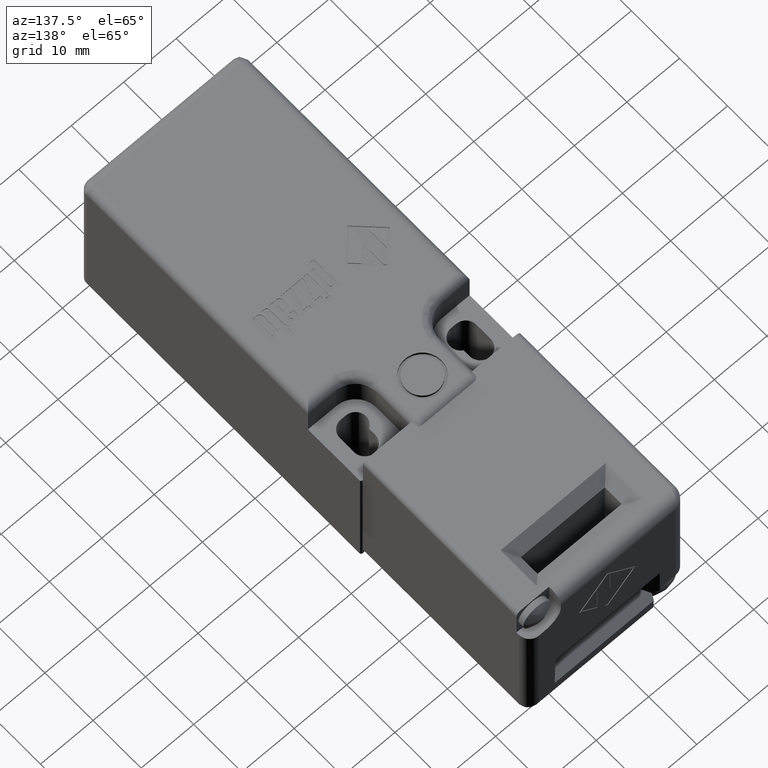
[diagram: clean part render]
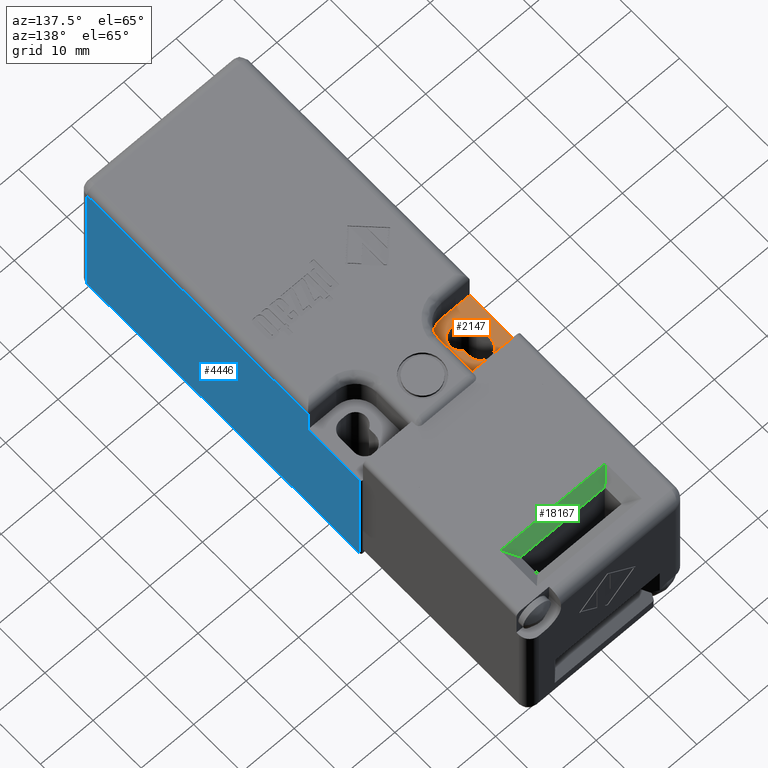
[diagram: same view with three faces highlighted in distinct colors, each labeled with its STEP entity id]
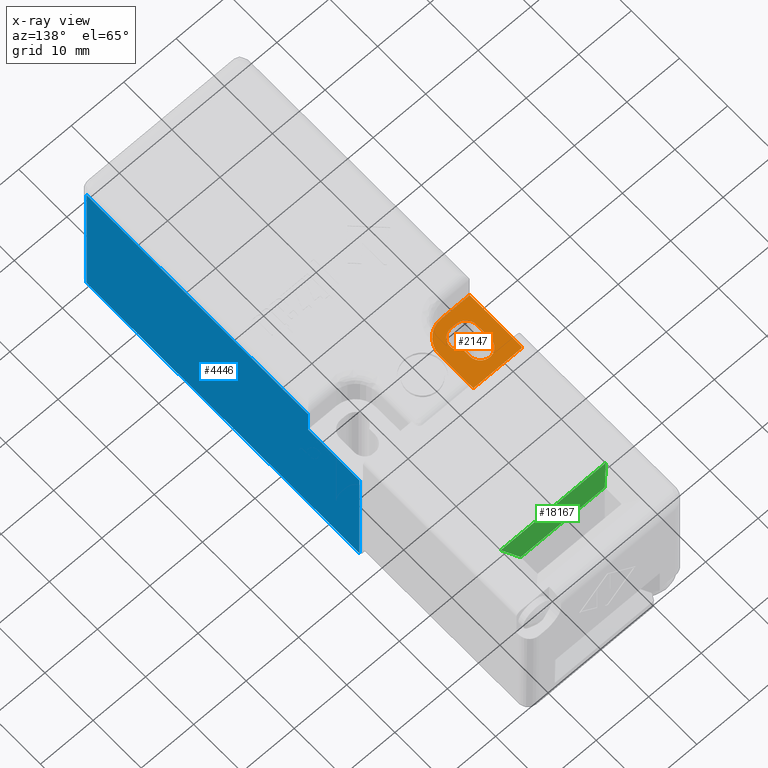
[diagram: x-ray of the same camera — body ghosted, the three highlighted faces saturated]
A machine part, auxiliary view with three faces highlighted in distinct colors.
The next image is the same camera in x-ray (body ghosted, the three faces saturated) — at least one of them is partly hidden behind the body in this view.
Their STEP definitions:

[orange] entity #2147 — the highlighted planar face has unit normal (0, 0, 1).
#2003=CARTESIAN_POINT('',(-6.000000000000004,6.999999999999997,12.000000000000004));
#2004=VERTEX_POINT('',#2003);
#2013=CARTESIAN_POINT('',(-6.000000000000004,3.469447E-015,12.000000000000004));
#2014=VERTEX_POINT('',#2013);
#2015=CARTESIAN_POINT('',(-6.000000000000004,3.469447E-015,12.000000000000004));
#2016=DIRECTION('',(0.0,1.0,0.0));
#2017=VECTOR('',#2016,6.999999999999993);
#2018=LINE('',#2015,#2017);
#2019=EDGE_CURVE('',#2014,#2004,#2018,.T.);
#2038=CARTESIAN_POINT('',(-15.870000000000008,-4.550000000000003,12.000000000000004));
#2039=DIRECTION('',(0.0,0.0,1.0));
#2040=DIRECTION('',(1.0,0.0,0.0));
#2041=AXIS2_PLACEMENT_3D('',#2038,#2039,#2040);
#2042=PLANE('',#2041);
#2043=ORIENTED_EDGE('',*,*,#2019,.T.);
#2044=CARTESIAN_POINT('',(-15.0,6.999999999999997,12.000000000000004));
#2045=VERTEX_POINT('',#2044);
#2046=CARTESIAN_POINT('',(-6.000000000000005,6.999999999999991,12.000000000000004));
#2047=DIRECTION('',(-1.0,0.0,0.0));
#2048=VECTOR('',#2047,8.999999999999995);
#2049=LINE('',#2046,#2048);
#2050=EDGE_CURVE('',#2004,#2045,#2049,.T.);
#2051=ORIENTED_EDGE('',*,*,#2050,.T.);
#2052=CARTESIAN_POINT('',(-15.100000000000000,6.999999999999991,12.000000000000004));
#2053=VERTEX_POINT('',#2052);
#2054=CARTESIAN_POINT('',(-15.0,6.999999999999991,12.000000000000004));
#2055=DIRECTION('',(-1.0,0.0,0.0));
#2056=VECTOR('',#2055,0.100000000000000);
#2057=LINE('',#2054,#2056);
#2058=EDGE_CURVE('',#2045,#2053,#2057,.T.);
#2059=ORIENTED_EDGE('',*,*,#2058,.T.);
#2060=CARTESIAN_POINT('',(-15.400000000000006,6.699999999999990,12.000000000000004));
#2061=VERTEX_POINT('',#2060);
#2062=CARTESIAN_POINT('',(-15.100000000000005,6.699999999999990,12.000000000000004));
#2063=DIRECTION('',(0.0,0.0,1.0));
#2064=DIRECTION('',(1.0,0.0,0.0));
#2065=AXIS2_PLACEMENT_3D('',#2062,#2063,#2064);
#2066=CIRCLE('',#2065,0.300000000000000);
#2067=EDGE_CURVE('',#2053,#2061,#2066,.T.);
#2068=ORIENTED_EDGE('',*,*,#2067,.T.);
#2069=CARTESIAN_POINT('',(-15.400000000000000,-4.0,12.000000000000004));
#2070=VERTEX_POINT('',#2069);
#2071=CARTESIAN_POINT('',(-15.400000000000006,6.699999999999990,12.000000000000004));
#2072=DIRECTION('',(0.0,-1.0,0.0));
#2073=VECTOR('',#2072,10.699999999999990);
#2074=LINE('',#2071,#2073);
#2075=EDGE_CURVE('',#2061,#2070,#2074,.T.);
#2076=ORIENTED_EDGE('',*,*,#2075,.T.);
#2077=CARTESIAN_POINT('',(-10.000000000000007,-4.0,12.000000000000004));
#2078=VERTEX_POINT('',#2077);
#2079=CARTESIAN_POINT('',(-15.400000000000000,-4.0,12.000000000000004));
#2080=DIRECTION('',(1.0,0.0,0.0));
#2081=VECTOR('',#2080,5.399999999999993);
#2082=LINE('',#2079,#2081);
#2083=EDGE_CURVE('',#2070,#2078,#2082,.T.);
#2084=ORIENTED_EDGE('',*,*,#2083,.T.);
#2085=CARTESIAN_POINT('',(-10.000000000000007,3.469447E-015,12.000000000000004));
#2086=DIRECTION('',(0.0,0.0,1.0));
#2087=DIRECTION('',(1.0,0.0,0.0));
#2088=AXIS2_PLACEMENT_3D('',#2085,#2086,#2087);
#2089=CIRCLE('',#2088,4.000000000000004);
#2090=EDGE_CURVE('',#2078,#2014,#2089,.T.);
#2091=ORIENTED_EDGE('',*,*,#2090,.T.);
#2092=EDGE_LOOP('',(#2043,#2051,#2059,#2068,#2076,#2084,#2091));
#2093=FACE_OUTER_BOUND('',#2092,.T.);
#2094=CARTESIAN_POINT('',(-9.0,1.732050807568875,12.000000000000004));
#2095=VERTEX_POINT('',#2094);
#2096=CARTESIAN_POINT('',(-9.0,2.999999999999999,12.000000000000004));
#2097=VERTEX_POINT('',#2096);
#2098=CARTESIAN_POINT('',(-9.0,1.732050807568875,12.000000000000004));
#2099=DIRECTION('',(0.0,1.0,0.0));
#2100=VECTOR('',#2099,1.267949192431124);
#2101=LINE('',#2098,#2100);
#2102=EDGE_CURVE('',#2095,#2097,#2101,.T.);
#2103=ORIENTED_EDGE('',*,*,#2102,.F.);
#2104=CARTESIAN_POINT('',(-9.999999999999996,-1.999999999999999,12.000000000000004));
#2105=VERTEX_POINT('',#2104);
#2106=CARTESIAN_POINT('',(-9.999999999999996,0.0,12.000000000000004));
#2107=DIRECTION('',(0.0,0.0,1.0));
#2108=DIRECTION('',(1.0,0.0,0.0));
#2109=AXIS2_PLACEMENT_3D('',#2106,#2107,#2108);
#2110=CIRCLE('',#2109,1.999999999999999);
#2111=EDGE_CURVE('',#2105,#2095,#2110,.T.);
#2112=ORIENTED_EDGE('',*,*,#2111,.F.);
#2113=CARTESIAN_POINT('',(-10.999999999999996,-1.999999999999999,12.000000000000004));
#2114=VERTEX_POINT('',#2113);
#2115=CARTESIAN_POINT('',(-10.999999999999996,-1.999999999999999,12.000000000000004));
#2116=DIRECTION('',(1.0,0.0,0.0));
#2117=VECTOR('',#2116,1.0);
#2118=LINE('',#2115,#2117);
#2119=EDGE_CURVE('',#2114,#2105,#2118,.T.);
#2120=ORIENTED_EDGE('',*,*,#2119,.F.);
#2121=CARTESIAN_POINT('',(-12.999999999999995,2.449294E-016,12.000000000000004));
#2122=VERTEX_POINT('',#2121);
#2123=CARTESIAN_POINT('',(-10.999999999999996,0.0,12.000000000000004));
#2124=DIRECTION('',(0.0,0.0,1.0));
#2125=DIRECTION('',(1.0,0.0,0.0));
#2126=AXIS2_PLACEMENT_3D('',#2123,#2124,#2125);
#2127=CIRCLE('',#2126,1.999999999999999);
#2128=EDGE_CURVE('',#2122,#2114,#2127,.T.);
#2129=ORIENTED_EDGE('',*,*,#2128,.F.);
#2130=CARTESIAN_POINT('',(-12.999999999999995,2.999999999999999,12.000000000000004));
#2131=VERTEX_POINT('',#2130);
#2132=CARTESIAN_POINT('',(-12.999999999999995,2.999999999999999,12.000000000000004));
#2133=DIRECTION('',(0.0,-1.0,0.0));
#2134=VECTOR('',#2133,2.999999999999999);
#2135=LINE('',#2132,#2134);
#2136=EDGE_CURVE('',#2131,#2122,#2135,.T.);
#2137=ORIENTED_EDGE('',*,*,#2136,.F.);
#2138=CARTESIAN_POINT('',(-10.999999999999996,2.999999999999999,12.000000000000004));
#2139=DIRECTION('',(0.0,0.0,1.0));
#2140=DIRECTION('',(1.0,0.0,0.0));
#2141=AXIS2_PLACEMENT_3D('',#2138,#2139,#2140);
#2142=CIRCLE('',#2141,1.999999999999999);
#2143=EDGE_CURVE('',#2097,#2131,#2142,.T.);
#2144=ORIENTED_EDGE('',*,*,#2143,.F.);
#2145=EDGE_LOOP('',(#2103,#2112,#2120,#2129,#2137,#2144));
#2146=FACE_BOUND('',#2145,.T.);
#2147=ADVANCED_FACE('',(#2093,#2146),#2042,.T.);

[blue] entity #4446 — the highlighted planar face has unit normal (-1, 0, 0).
#269=CARTESIAN_POINT('',(15.400000000000006,6.699999999999990,-12.199999999999999));
#270=VERTEX_POINT('',#269);
#278=CARTESIAN_POINT('',(15.400000000000006,-50.000000000000014,-12.199999999999999));
#279=VERTEX_POINT('',#278);
#280=CARTESIAN_POINT('',(15.400000000000006,6.699999999999989,-12.199999999999999));
#281=DIRECTION('',(0.0,-1.0,0.0));
#282=VECTOR('',#281,56.700000000000003);
#283=LINE('',#280,#282);
#284=EDGE_CURVE('',#270,#279,#283,.T.);
#4221=CARTESIAN_POINT('',(15.400000000000000,-4.0,12.000000000000004));
#4222=VERTEX_POINT('',#4221);
#4229=CARTESIAN_POINT('',(15.400000000000006,6.699999999999990,12.000000000000004));
#4230=VERTEX_POINT('',#4229);
#4231=CARTESIAN_POINT('',(15.400000000000006,6.699999999999990,12.000000000000004));
#4232=DIRECTION('',(0.0,-1.0,0.0));
#4233=VECTOR('',#4232,10.699999999999990);
#4234=LINE('',#4231,#4233);
#4235=EDGE_CURVE('',#4230,#4222,#4234,.T.);
#4409=CARTESIAN_POINT('',(15.400000000000006,9.534999999999990,18.565000000000001));
#4410=DIRECTION('',(-1.0,0.0,0.0));
#4411=DIRECTION('',(0.0,0.0,-1.0));
#4412=AXIS2_PLACEMENT_3D('',#4409,#4410,#4411);
#4413=PLANE('',#4412);
#4414=ORIENTED_EDGE('',*,*,#4235,.T.);
#4415=CARTESIAN_POINT('',(15.400000000000000,-4.0,17.100000000000001));
#4416=VERTEX_POINT('',#4415);
#4417=CARTESIAN_POINT('',(15.400000000000000,-4.0,12.000000000000004));
#4418=DIRECTION('',(0.0,0.0,1.0));
#4419=VECTOR('',#4418,5.099999999999998);
#4420=LINE('',#4417,#4419);
#4421=EDGE_CURVE('',#4222,#4416,#4420,.T.);
#4422=ORIENTED_EDGE('',*,*,#4421,.T.);
#4423=CARTESIAN_POINT('',(15.400000000000006,-50.000000000000014,17.100000000000001));
#4424=VERTEX_POINT('',#4423);
#4425=CARTESIAN_POINT('',(15.400000000000006,-50.000000000000014,17.100000000000001));
#4426=DIRECTION('',(0.0,1.0,0.0));
#4427=VECTOR('',#4426,46.000000000000014);
#4428=LINE('',#4425,#4427);
#4429=EDGE_CURVE('',#4424,#4416,#4428,.T.);
#4430=ORIENTED_EDGE('',*,*,#4429,.F.);
#4431=CARTESIAN_POINT('',(15.400000000000006,-50.000000000000014,-12.199999999999999));
#4432=DIRECTION('',(0.0,0.0,1.0));
#4433=VECTOR('',#4432,29.300000000000001);
#4434=LINE('',#4431,#4433);
#4435=EDGE_CURVE('',#279,#4424,#4434,.T.);
#4436=ORIENTED_EDGE('',*,*,#4435,.F.);
#4437=ORIENTED_EDGE('',*,*,#284,.F.);
#4438=CARTESIAN_POINT('',(15.400000000000006,6.699999999999990,12.000000000000004));
#4439=DIRECTION('',(0.0,0.0,-1.0));
#4440=VECTOR('',#4439,24.200000000000003);
#4441=LINE('',#4438,#4440);
#4442=EDGE_CURVE('',#4230,#270,#4441,.T.);
#4443=ORIENTED_EDGE('',*,*,#4442,.F.);
#4444=EDGE_LOOP('',(#4414,#4422,#4430,#4436,#4437,#4443));
#4445=FACE_OUTER_BOUND('',#4444,.T.);
#4446=ADVANCED_FACE('',(#4445),#4413,.F.);

[green] entity #18167 — the highlighted planar face has unit normal (-0, -0.7071, -0.7071).
#17812=CARTESIAN_POINT('',(10.000000000000053,30.149999999999981,18.000000000000021));
#17813=VERTEX_POINT('',#17812);
#17814=CARTESIAN_POINT('',(-9.999999999999961,30.149999999999981,18.000000000000028));
#17815=VERTEX_POINT('',#17814);
#17816=CARTESIAN_POINT('',(10.000000000000053,30.149999999999988,18.000000000000021));
#17817=DIRECTION('',(-1.0,0.0,0.0));
#17818=VECTOR('',#17817,20.000000000000014);
#17819=LINE('',#17816,#17818);
#17820=EDGE_CURVE('',#17813,#17815,#17819,.T.);
#17940=CARTESIAN_POINT('',(8.000000000000046,32.149999999999991,16.000000000000032));
#17941=VERTEX_POINT('',#17940);
#18129=CARTESIAN_POINT('',(-7.999999999999955,32.149999999999984,16.000000000000032));
#18130=VERTEX_POINT('',#18129);
#18137=CARTESIAN_POINT('',(-7.999999999999955,32.149999999999991,16.000000000000032));
#18138=DIRECTION('',(1.0,0.0,0.0));
#18139=VECTOR('',#18138,16.0);
#18140=LINE('',#18137,#18139);
#18141=EDGE_CURVE('',#18130,#17941,#18140,.T.);
#18146=CARTESIAN_POINT('',(11.000000000000055,32.249999999999993,15.900000000000032));
#18147=DIRECTION('',(-1.815419E-016,-0.707106781186546,-0.707106781186549));
#18148=DIRECTION('',(-5.703852E-016,-0.707106781186549,0.707106781186546));
#18149=AXIS2_PLACEMENT_3D('',#18146,#18147,#18148);
#18150=PLANE('',#18149);
#18151=ORIENTED_EDGE('',*,*,#18141,.F.);
#18152=CARTESIAN_POINT('',(-7.999999999999955,32.149999999999984,16.000000000000032));
#18153=DIRECTION('',(-0.577350269189627,-0.577350269189626,0.577350269189624));
#18154=VECTOR('',#18153,3.464101615137757);
#18155=LINE('',#18152,#18154);
#18156=EDGE_CURVE('',#18130,#17815,#18155,.T.);
#18157=ORIENTED_EDGE('',*,*,#18156,.T.);
#18158=ORIENTED_EDGE('',*,*,#17820,.F.);
#18159=CARTESIAN_POINT('',(8.000000000000046,32.149999999999991,16.000000000000032));
#18160=DIRECTION('',(0.577350269189626,-0.577350269189627,0.577350269189624));
#18161=VECTOR('',#18160,3.464101615137759);
#18162=LINE('',#18159,#18161);
#18163=EDGE_CURVE('',#17941,#17813,#18162,.T.);
#18164=ORIENTED_EDGE('',*,*,#18163,.F.);
#18165=EDGE_LOOP('',(#18151,#18157,#18158,#18164));
#18166=FACE_OUTER_BOUND('',#18165,.T.);
#18167=ADVANCED_FACE('',(#18166),#18150,.F.);